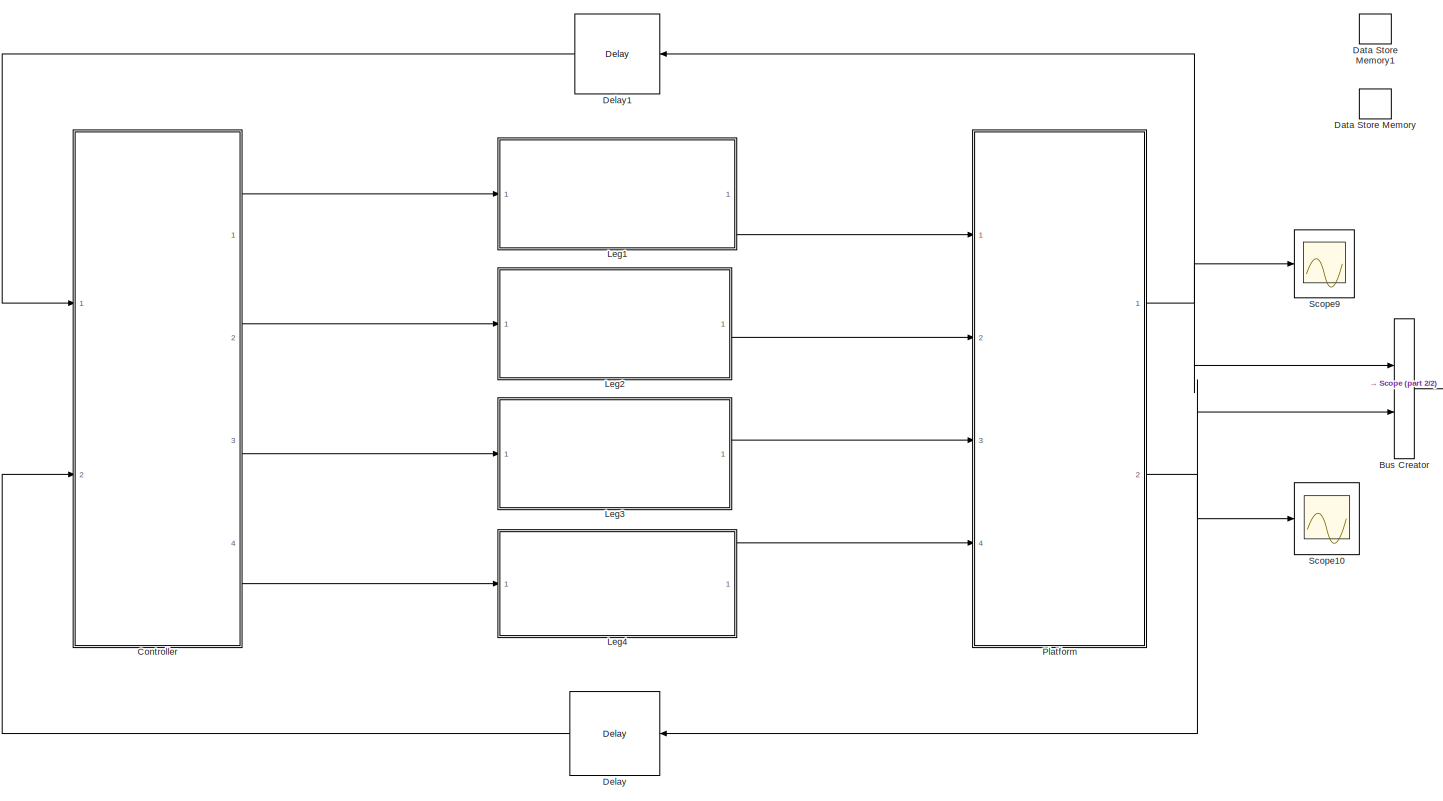
[diagram: root canvas - part 1/2, most of the canvas]
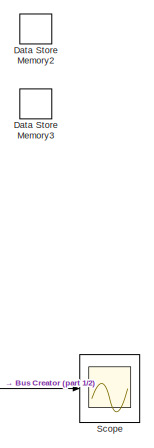
[diagram: root canvas - part 2/2, top right region]
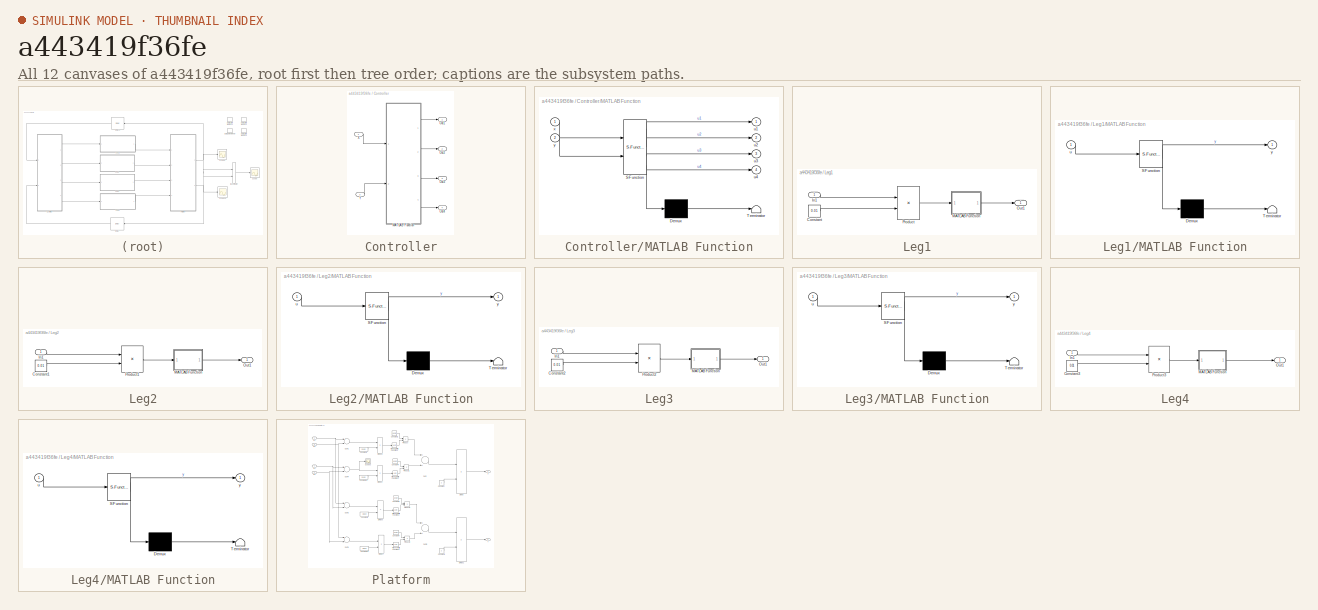
[diagram: thumbnail index - all 12 canvases of the model, root first then tree order]
MODEL slx_a443419f36fe
KIND model
CONFIG AbsTol = auto
CONFIG EnableMultiTasking = off
CONFIG FixedStep = 0.01
CONFIG MaxStep = 1.0
CONFIG MinStep = auto
CONFIG RelTol = 1e-3
CONFIG SampleTimeConstraint = Unconstrained
CONFIG Solver = VariableStepAuto
CONFIG SolverName = VariableStepAuto
CONFIG StartTime = 0.0
CONFIG StopTime = 10
BLOCK [BusCreator] Bus Creator
  DisplayOption = bar
  InheritFromInputs = on
  Inputs = 2
  Ports = [2, 1]
BLOCK [SubSystem] Controller
  Ports = [2, 4]
  RequestExecContextInheritance = off
  TreatAsAtomicUnit = on
  Variant = off
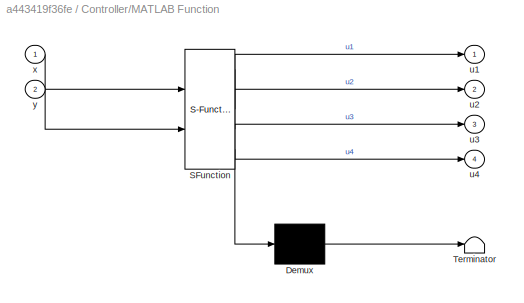
BLOCK [SubSystem] Controller/MATLAB Function
  ErrorFcn = Stateflow.Translate.translate
  PermitHierarchicalResolution = ExplicitOnly
  Ports = [2, 4]
  RequestExecContextInheritance = off
  SFBlockType = MATLAB Function
  TreatAsAtomicUnit = on
  Variant = off
BLOCK [Demux] Controller/MATLAB Function/ Demux 
  Outputs = 1
  Ports = [1, 1]
BLOCK [S-Function] Controller/MATLAB Function/ SFunction 
  EnableBusSupport = on
  FunctionName = sf_sfun
  PortCounts = [2 5]
  Ports = [2, 5]
  SFcnIsStateOwnerBlock = off
  SFunctionDeploymentMode = off
  Tag = Stateflow S-Function draft33 2
BLOCK [Terminator] Controller/MATLAB Function/ Terminator 
BLOCK [Outport] Controller/MATLAB Function/u1
  IconDisplay = Port number
BLOCK [Outport] Controller/MATLAB Function/u2
  IconDisplay = Port number
  Port = 2
BLOCK [Outport] Controller/MATLAB Function/u3
  IconDisplay = Port number
  Port = 3
BLOCK [Outport] Controller/MATLAB Function/u4
  IconDisplay = Port number
  Port = 4
BLOCK [Inport] Controller/MATLAB Function/x
  IconDisplay = Port number
BLOCK [Inport] Controller/MATLAB Function/y
  IconDisplay = Port number
  Port = 2
BLOCK [Outport] Controller/Out1
  IconDisplay = Port number
BLOCK [Outport] Controller/Out2
  IconDisplay = Port number
  Port = 2
BLOCK [Outport] Controller/Out3
  IconDisplay = Port number
  Port = 3
BLOCK [Outport] Controller/Out4
  IconDisplay = Port number
  Port = 4
BLOCK [Inport] Controller/X
  IconDisplay = Port number
BLOCK [Inport] Controller/Y
  IconDisplay = Port number
  Port = 2
BLOCK [DataStoreMemory] Data Store Memory
  DataStoreName = c
  InitialValue = 230
  OutDataTypeStr = double
  ReadBeforeWriteMsg = warning
  ShowAdditionalParam = off
  SignalType = real
  WriteAfterReadMsg = warning
  WriteAfterWriteMsg = warning
BLOCK [DataStoreMemory] Data Store Memory1
  DataStoreName = b
  InitialValue = 245
  OutDataTypeStr = double
  ReadBeforeWriteMsg = warning
  ShowAdditionalParam = off
  SignalType = real
  WriteAfterReadMsg = warning
  WriteAfterWriteMsg = warning
BLOCK [DataStoreMemory] Data Store Memory2
  DataStoreName = a
  InitialValue = 250
  OutDataTypeStr = double
  ReadBeforeWriteMsg = warning
  ShowAdditionalParam = off
  SignalType = real
  WriteAfterReadMsg = warning
  WriteAfterWriteMsg = warning
BLOCK [DataStoreMemory] Data Store Memory3
  DataStoreName = d
  InitialValue = 240
  OutDataTypeStr = double
  ReadBeforeWriteMsg = warning
  ShowAdditionalParam = off
  SignalType = real
  WriteAfterReadMsg = warning
  WriteAfterWriteMsg = warning
BLOCK [Delay] Delay
  DelayLength = 1
  InputPortMap = u0
  Ports = [1, 1]
  SampleTime = 3/700
BLOCK [Delay] Delay1
  DelayLength = 1
  InputPortMap = u0
  Ports = [1, 1]
  SampleTime = 3/700
BLOCK [SubSystem] Leg1
  Ports = [1, 1]
  RequestExecContextInheritance = off
  TreatAsAtomicUnit = on
  Variant = off
BLOCK [Constant] Leg1/Constant
  Value = 0.01
BLOCK [Inport] Leg1/In1
  IconDisplay = Port number
BLOCK [SubSystem] Leg1/MATLAB Function
  ErrorFcn = Stateflow.Translate.translate
  PermitHierarchicalResolution = ExplicitOnly
  Ports = [1, 1]
  RequestExecContextInheritance = off
  SFBlockType = MATLAB Function
  TreatAsAtomicUnit = on
  Variant = off
BLOCK [Demux] Leg1/MATLAB Function/ Demux 
  Outputs = 1
  Ports = [1, 1]
BLOCK [S-Function] Leg1/MATLAB Function/ SFunction 
  EnableBusSupport = on
  FunctionName = sf_sfun
  PortCounts = [1 2]
  Ports = [1, 2]
  SFcnIsStateOwnerBlock = off
  SFunctionDeploymentMode = off
  Tag = Stateflow S-Function draft33 4
BLOCK [Terminator] Leg1/MATLAB Function/ Terminator 
BLOCK [Inport] Leg1/MATLAB Function/u
  IconDisplay = Port number
BLOCK [Outport] Leg1/MATLAB Function/y
  IconDisplay = Port number
BLOCK [Outport] Leg1/Out1
  IconDisplay = Port number
BLOCK [Product] Leg1/Product
  InputSameDT = off
  OutDataTypeStr = Inherit: Inherit via internal rule
  Ports = [2, 1]
  RndMeth = Floor
  SaturateOnIntegerOverflow = off
BLOCK [SubSystem] Leg2
  Ports = [1, 1]
  RequestExecContextInheritance = off
  TreatAsAtomicUnit = on
  Variant = off
BLOCK [Constant] Leg2/Constant1
  Value = 0.01
BLOCK [Inport] Leg2/In1
  IconDisplay = Port number
BLOCK [SubSystem] Leg2/MATLAB Function
  ErrorFcn = Stateflow.Translate.translate
  PermitHierarchicalResolution = ExplicitOnly
  Ports = [1, 1]
  RequestExecContextInheritance = off
  SFBlockType = MATLAB Function
  TreatAsAtomicUnit = on
  Variant = off
BLOCK [Demux] Leg2/MATLAB Function/ Demux 
  Outputs = 1
  Ports = [1, 1]
BLOCK [S-Function] Leg2/MATLAB Function/ SFunction 
  EnableBusSupport = on
  FunctionName = sf_sfun
  PortCounts = [1 2]
  Ports = [1, 2]
  SFcnIsStateOwnerBlock = off
  SFunctionDeploymentMode = off
  Tag = Stateflow S-Function draft33 3
BLOCK [Terminator] Leg2/MATLAB Function/ Terminator 
BLOCK [Inport] Leg2/MATLAB Function/u
  IconDisplay = Port number
BLOCK [Outport] Leg2/MATLAB Function/y
  IconDisplay = Port number
BLOCK [Outport] Leg2/Out1
  IconDisplay = Port number
BLOCK [Product] Leg2/Product1
  InputSameDT = off
  OutDataTypeStr = Inherit: Inherit via internal rule
  Ports = [2, 1]
  RndMeth = Floor
  SaturateOnIntegerOverflow = off
BLOCK [SubSystem] Leg3
  Ports = [1, 1]
  RequestExecContextInheritance = off
  TreatAsAtomicUnit = on
  Variant = off
BLOCK [Constant] Leg3/Constant2
  Value = 0.01
BLOCK [Inport] Leg3/In1
  IconDisplay = Port number
BLOCK [SubSystem] Leg3/MATLAB Function
  ErrorFcn = Stateflow.Translate.translate
  PermitHierarchicalResolution = ExplicitOnly
  Ports = [1, 1]
  RequestExecContextInheritance = off
  SFBlockType = MATLAB Function
  TreatAsAtomicUnit = on
  Variant = off
BLOCK [Demux] Leg3/MATLAB Function/ Demux 
  Outputs = 1
  Ports = [1, 1]
BLOCK [S-Function] Leg3/MATLAB Function/ SFunction 
  EnableBusSupport = on
  FunctionName = sf_sfun
  PortCounts = [1 2]
  Ports = [1, 2]
  SFcnIsStateOwnerBlock = off
  SFunctionDeploymentMode = off
  Tag = Stateflow S-Function draft33 1
BLOCK [Terminator] Leg3/MATLAB Function/ Terminator 
BLOCK [Inport] Leg3/MATLAB Function/u
  IconDisplay = Port number
BLOCK [Outport] Leg3/MATLAB Function/y
  IconDisplay = Port number
BLOCK [Outport] Leg3/Out1
  IconDisplay = Port number
BLOCK [Product] Leg3/Product2
  InputSameDT = off
  OutDataTypeStr = Inherit: Inherit via internal rule
  Ports = [2, 1]
  RndMeth = Floor
  SaturateOnIntegerOverflow = off
BLOCK [SubSystem] Leg4
  Ports = [1, 1]
  RequestExecContextInheritance = off
  TreatAsAtomicUnit = on
  Variant = off
BLOCK [Constant] Leg4/Constant3
  Value = 0.01
BLOCK [Inport] Leg4/In1
  IconDisplay = Port number
BLOCK [SubSystem] Leg4/MATLAB Function
  ErrorFcn = Stateflow.Translate.translate
  PermitHierarchicalResolution = ExplicitOnly
  Ports = [1, 1]
  RequestExecContextInheritance = off
  SFBlockType = MATLAB Function
  TreatAsAtomicUnit = on
  Variant = off
BLOCK [Demux] Leg4/MATLAB Function/ Demux 
  Outputs = 1
  Ports = [1, 1]
BLOCK [S-Function] Leg4/MATLAB Function/ SFunction 
  EnableBusSupport = on
  FunctionName = sf_sfun
  PortCounts = [1 2]
  Ports = [1, 2]
  SFcnIsStateOwnerBlock = off
  SFunctionDeploymentMode = off
  Tag = Stateflow S-Function draft33 5
BLOCK [Terminator] Leg4/MATLAB Function/ Terminator 
BLOCK [Inport] Leg4/MATLAB Function/u
  IconDisplay = Port number
BLOCK [Outport] Leg4/MATLAB Function/y
  IconDisplay = Port number
BLOCK [Outport] Leg4/Out1
  IconDisplay = Port number
BLOCK [Product] Leg4/Product3
  InputSameDT = off
  OutDataTypeStr = Inherit: Inherit via internal rule
  Ports = [2, 1]
  RndMeth = Floor
  SaturateOnIntegerOverflow = off
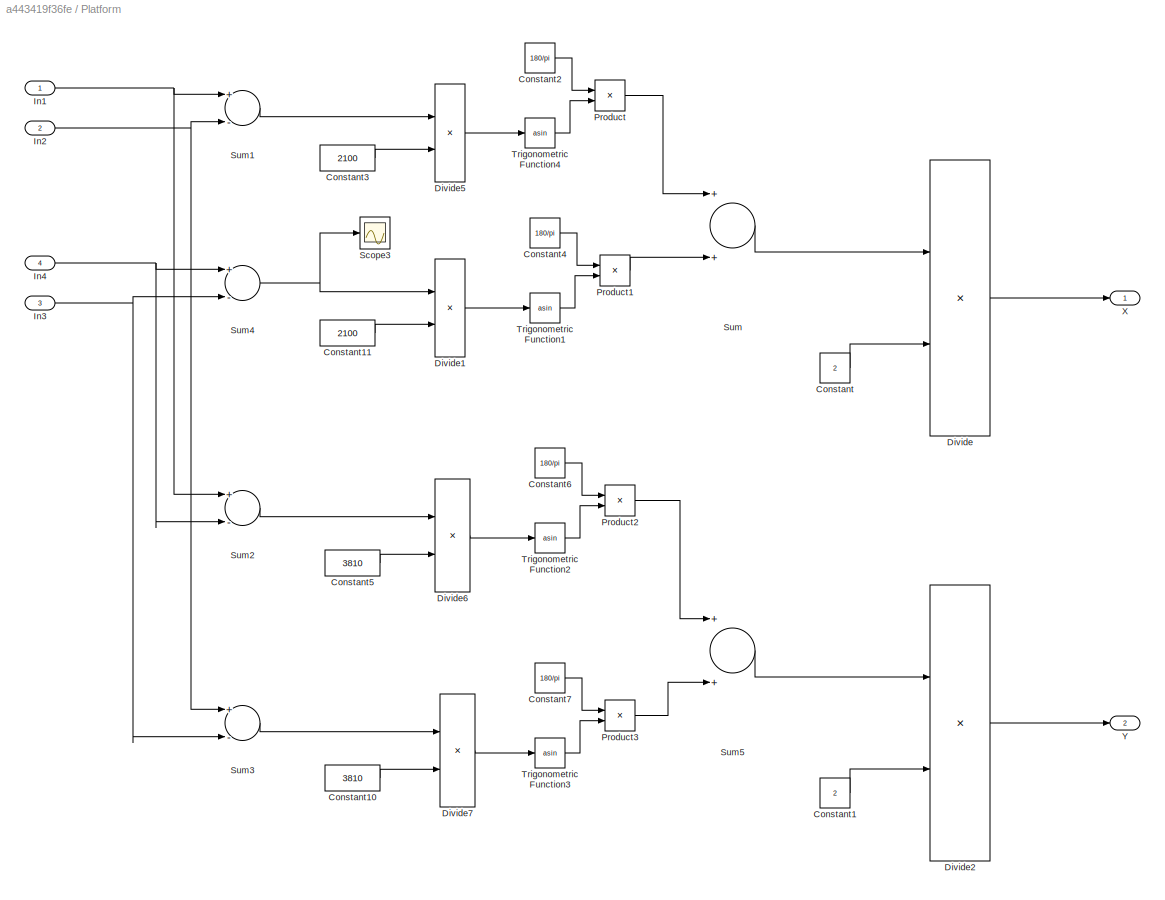
BLOCK [SubSystem] Platform
  Ports = [4, 2]
  RequestExecContextInheritance = off
  TreatAsAtomicUnit = on
  Variant = off
BLOCK [Constant] Platform/Constant
  Value = 2
BLOCK [Constant] Platform/Constant1
  Value = 2
BLOCK [Constant] Platform/Constant10
  Value = 3810
BLOCK [Constant] Platform/Constant11
  Value = 2100
BLOCK [Constant] Platform/Constant2
  Value = 180/pi
BLOCK [Constant] Platform/Constant3
  Value = 2100
BLOCK [Constant] Platform/Constant4
  Value = 180/pi
BLOCK [Constant] Platform/Constant5
  Value = 3810
BLOCK [Constant] Platform/Constant6
  Value = 180/pi
BLOCK [Constant] Platform/Constant7
  Value = 180/pi
BLOCK [Product] Platform/Divide
  InputSameDT = off
  Inputs = */
  OutDataTypeStr = Inherit: Inherit via internal rule
  Ports = [2, 1]
  RndMeth = Floor
  SaturateOnIntegerOverflow = off
BLOCK [Product] Platform/Divide1
  InputSameDT = off
  Inputs = */
  OutDataTypeStr = Inherit: Inherit via internal rule
  Ports = [2, 1]
  RndMeth = Floor
  SaturateOnIntegerOverflow = off
BLOCK [Product] Platform/Divide2
  InputSameDT = off
  Inputs = */
  OutDataTypeStr = Inherit: Inherit via internal rule
  Ports = [2, 1]
  RndMeth = Floor
  SaturateOnIntegerOverflow = off
BLOCK [Product] Platform/Divide5
  InputSameDT = off
  Inputs = */
  OutDataTypeStr = Inherit: Inherit via internal rule
  Ports = [2, 1]
  RndMeth = Floor
  SaturateOnIntegerOverflow = off
BLOCK [Product] Platform/Divide6
  InputSameDT = off
  Inputs = */
  OutDataTypeStr = Inherit: Inherit via internal rule
  Ports = [2, 1]
  RndMeth = Floor
  SaturateOnIntegerOverflow = off
BLOCK [Product] Platform/Divide7
  InputSameDT = off
  Inputs = */
  OutDataTypeStr = Inherit: Inherit via internal rule
  Ports = [2, 1]
  RndMeth = Floor
  SaturateOnIntegerOverflow = off
BLOCK [Inport] Platform/In1
  IconDisplay = Port number
BLOCK [Inport] Platform/In2
  IconDisplay = Port number
  Port = 2
BLOCK [Inport] Platform/In3
  IconDisplay = Port number
  Port = 3
BLOCK [Inport] Platform/In4
  IconDisplay = Port number
  Port = 4
BLOCK [Product] Platform/Product
  InputSameDT = off
  OutDataTypeStr = Inherit: Inherit via internal rule
  Ports = [2, 1]
  RndMeth = Floor
  SaturateOnIntegerOverflow = off
BLOCK [Product] Platform/Product1
  InputSameDT = off
  OutDataTypeStr = Inherit: Inherit via internal rule
  Ports = [2, 1]
  RndMeth = Floor
  SaturateOnIntegerOverflow = off
BLOCK [Product] Platform/Product2
  InputSameDT = off
  OutDataTypeStr = Inherit: Inherit via internal rule
  Ports = [2, 1]
  RndMeth = Floor
  SaturateOnIntegerOverflow = off
BLOCK [Product] Platform/Product3
  InputSameDT = off
  OutDataTypeStr = Inherit: Inherit via internal rule
  Ports = [2, 1]
  RndMeth = Floor
  SaturateOnIntegerOverflow = off
BLOCK [Scope] Platform/Scope3
  NumInputPorts = 1
  Ports = [1]
  ScopeSpecificationString = Simulink.scopes.TimeScopeBlockCfg('CurrentConfiguration', extmgr.ConfigurationSet(extmgr.Configuration('Core','General UI',true),extmgr.Configuration('Core','Source UI',true),extmgr.Configuration('Sources','WiredSimulink',true,'DataLoggingVariableName','ScopeData4'),extmgr.Configuration('Visuals','Time Domain',true,'SerializedDisplays',{struct('MinYLimReal','40.00000','MaxYLimReal','60.00000','YLa...<+1369ch>
BLOCK [Sum] Platform/Sum
  InputSameDT = off
  OutDataTypeStr = Inherit: Inherit via internal rule
  Ports = [2, 1]
  SaturateOnIntegerOverflow = off
BLOCK [Sum] Platform/Sum1
  InputSameDT = off
  Inputs = +-
  OutDataTypeStr = Inherit: Inherit via internal rule
  Ports = [2, 1]
  SaturateOnIntegerOverflow = off
BLOCK [Sum] Platform/Sum2
  InputSameDT = off
  Inputs = +-
  OutDataTypeStr = Inherit: Inherit via internal rule
  Ports = [2, 1]
  SaturateOnIntegerOverflow = off
BLOCK [Sum] Platform/Sum3
  InputSameDT = off
  Inputs = +-
  OutDataTypeStr = Inherit: Inherit via internal rule
  Ports = [2, 1]
  SaturateOnIntegerOverflow = off
BLOCK [Sum] Platform/Sum4
  InputSameDT = off
  Inputs = +-
  OutDataTypeStr = Inherit: Inherit via internal rule
  Ports = [2, 1]
  SaturateOnIntegerOverflow = off
BLOCK [Sum] Platform/Sum5
  InputSameDT = off
  OutDataTypeStr = Inherit: Inherit via internal rule
  Ports = [2, 1]
  SaturateOnIntegerOverflow = off
BLOCK [Trigonometry] Platform/Trigonometric Function1
  Operator = asin
  Ports = [1, 1]
BLOCK [Trigonometry] Platform/Trigonometric Function2
  Operator = asin
  Ports = [1, 1]
BLOCK [Trigonometry] Platform/Trigonometric Function3
  Operator = asin
  Ports = [1, 1]
BLOCK [Trigonometry] Platform/Trigonometric Function4
  Operator = asin
  Ports = [1, 1]
BLOCK [Outport] Platform/X
  IconDisplay = Port number
BLOCK [Outport] Platform/Y
  IconDisplay = Port number
  Port = 2
BLOCK [Scope] Scope
  NumInputPorts = 1
  Ports = [1]
  ScopeSpecificationString = Simulink.scopes.TimeScopeBlockCfg('CurrentConfiguration', extmgr.ConfigurationSet(extmgr.Configuration('Core','General UI',true,'FigureColor',[1 1 1]),extmgr.Configuration('Core','Source UI',true),extmgr.Configuration('Sources','WiredSimulink',true,'DataLoggingVariableName','ScopeData1'),extmgr.Configuration('Visuals','Time Domain',true,'SerializedDisplays',{struct('MinYLimReal','-0.00333','MaxYLi...<+1752ch>
BLOCK [Scope] Scope10
  NumInputPorts = 1
  Ports = [1]
  ScopeSpecificationString = Simulink.scopes.TimeScopeBlockCfg('CurrentConfiguration', extmgr.ConfigurationSet(extmgr.Configuration('Core','General UI',true),extmgr.Configuration('Core','Source UI',true),extmgr.Configuration('Sources','WiredSimulink',true,'DataLoggingVariableName','ScopeData11'),extmgr.Configuration('Visuals','Time Domain',true,'SerializedDisplays',{struct('MinYLimReal','0.00832','MaxYLimReal','0.12439','YLab...<+1433ch>
BLOCK [Scope] Scope9
  NumInputPorts = 1
  Ports = [1]
  ScopeSpecificationString = Simulink.scopes.TimeScopeBlockCfg('CurrentConfiguration', extmgr.ConfigurationSet(extmgr.Configuration('Core','General UI',true),extmgr.Configuration('Core','Source UI',true),extmgr.Configuration('Sources','WiredSimulink',true,'DataLoggingVariableName','ScopeData10'),extmgr.Configuration('Visuals','Time Domain',true,'SerializedDisplays',{struct('MinYLimReal','-0.02038','MaxYLimReal','0.38121','YLa...<+1502ch>
LINE Bus Creator:1 -> Scope:1
LINE Controller/MATLAB Function:1 -> Controller/Out1:1
LINE Controller/MATLAB Function:2 -> Controller/Out2:1
LINE Controller/MATLAB Function:3 -> Controller/Out3:1
LINE Controller/MATLAB Function:4 -> Controller/Out4:1
LINE Controller/X:1 -> Controller/MATLAB Function:1
LINE Controller/Y:1 -> Controller/MATLAB Function:2
LINE Controller:1 -> Leg1:1
LINE Controller:2 -> Leg2:1
LINE Controller:3 -> Leg3:1
LINE Controller:4 -> Leg4:1
LINE Delay1:1 -> Controller:1
LINE Delay:1 -> Controller:2
LINE Leg1/Constant:1 -> Leg1/Product:2
LINE Leg1/In1:1 -> Leg1/Product:1
LINE Leg1/MATLAB Function:1 -> Leg1/Out1:1
LINE Leg1/Product:1 -> Leg1/MATLAB Function:1
LINE Leg1:1 -> Platform:1
LINE Leg2/Constant1:1 -> Leg2/Product1:2
LINE Leg2/In1:1 -> Leg2/Product1:1
LINE Leg2/MATLAB Function:1 -> Leg2/Out1:1
LINE Leg2/Product1:1 -> Leg2/MATLAB Function:1
LINE Leg2:1 -> Platform:2
LINE Leg3/Constant2:1 -> Leg3/Product2:2
LINE Leg3/In1:1 -> Leg3/Product2:1
LINE Leg3/MATLAB Function:1 -> Leg3/Out1:1
LINE Leg3/Product2:1 -> Leg3/MATLAB Function:1
LINE Leg3:1 -> Platform:3
LINE Leg4/Constant3:1 -> Leg4/Product3:2
LINE Leg4/In1:1 -> Leg4/Product3:1
LINE Leg4/MATLAB Function:1 -> Leg4/Out1:1
LINE Leg4/Product3:1 -> Leg4/MATLAB Function:1
LINE Leg4:1 -> Platform:4
LINE Platform/Constant10:1 -> Platform/Divide7:2
LINE Platform/Constant11:1 -> Platform/Divide1:2
LINE Platform/Constant1:1 -> Platform/Divide2:2
LINE Platform/Constant2:1 -> Platform/Product:1
LINE Platform/Constant3:1 -> Platform/Divide5:2
LINE Platform/Constant4:1 -> Platform/Product1:1
LINE Platform/Constant5:1 -> Platform/Divide6:2
LINE Platform/Constant6:1 -> Platform/Product2:1
LINE Platform/Constant7:1 -> Platform/Product3:1
LINE Platform/Constant:1 -> Platform/Divide:2
LINE Platform/Divide1:1 -> Platform/Trigonometric Function1:1
LINE Platform/Divide2:1 -> Platform/Y:1
LINE Platform/Divide5:1 -> Platform/Trigonometric Function4:1
LINE Platform/Divide6:1 -> Platform/Trigonometric Function2:1
LINE Platform/Divide7:1 -> Platform/Trigonometric Function3:1
LINE Platform/Divide:1 -> Platform/X:1
NET Platform/In1:1 -> Platform/Sum1:1, Platform/Sum2:1
NET Platform/In2:1 -> Platform/Sum1:2, Platform/Sum3:1
NET Platform/In3:1 -> Platform/Sum3:2, Platform/Sum4:2
NET Platform/In4:1 -> Platform/Sum2:2, Platform/Sum4:1
LINE Platform/Product1:1 -> Platform/Sum:2
LINE Platform/Product2:1 -> Platform/Sum5:1
LINE Platform/Product3:1 -> Platform/Sum5:2
LINE Platform/Product:1 -> Platform/Sum:1
LINE Platform/Sum1:1 -> Platform/Divide5:1
LINE Platform/Sum2:1 -> Platform/Divide6:1
LINE Platform/Sum3:1 -> Platform/Divide7:1
NET Platform/Sum4:1 -> Platform/Divide1:1, Platform/Scope3:1
LINE Platform/Sum5:1 -> Platform/Divide2:1
LINE Platform/Sum:1 -> Platform/Divide:1
LINE Platform/Trigonometric Function1:1 -> Platform/Product1:2
LINE Platform/Trigonometric Function2:1 -> Platform/Product2:2
LINE Platform/Trigonometric Function3:1 -> Platform/Product3:2
LINE Platform/Trigonometric Function4:1 -> Platform/Product:2
NET Platform:1 -> Bus Creator:1, Delay1:1, Scope9:1
NET Platform:2 -> Bus Creator:2, Delay:1, Scope10:1
note: NET lines group one-source signal fan-out (src -> all destinations, sorted); 1:1 wires keep LINE
CHART Leg3/MATLAB Function states=1 transitions=1
  STATE_LABEL 'eML_blk_kernel()'
  STATE_LABEL 'SCRIPT:\nfunction y = fcn(u)\nglobal c;\nc= u+c;\ny=c;\n'
CHART Controller/MATLAB Function states=1 transitions=1
  STATE_LABEL 'eML_blk_kernel()'
  STATE_LABEL 'SCRIPT:\nfunction [u1,u2,u3,u4]= fcn(x,y)\nif x>0.02&&y>0.02\n    u3=1;u1=-1;u2=0;u4=1;\nelse\n    if x<-0.02&&y>0.02\n        u4=1;u3=1;u1=0;u2=-1;\n    else\n        if x<-0.02&&y<-0.02\n            u1=1;u3=-1;u2=1;u4=0;\n        else\n            if x>0.02&&y<-0.02\n                u2=1;u3=0;u1=1;u4=-1;\n            else\n                u1=0;u2=0;u3=0;u4=0;\n            end\n        end\n    end\nend\nif (x>-0.0...<+322ch>'
CHART Leg2/MATLAB Function states=1 transitions=1
  STATE_LABEL 'eML_blk_kernel()'
  STATE_LABEL 'SCRIPT:\nfunction y = fcn(u)\nglobal b;\nb= u+b;\ny=b;\n'
CHART Leg1/MATLAB Function states=1 transitions=1
  STATE_LABEL 'eML_blk_kernel()'
  STATE_LABEL 'SCRIPT:\nfunction y = fcn(u)\nglobal a;\na= u+a;\ny=a;\n'
CHART Leg4/MATLAB Function states=1 transitions=1
  STATE_LABEL 'eML_blk_kernel()'
  STATE_LABEL 'SCRIPT:\nfunction y = fcn(u)\nglobal d;\nd= u+d;\ny=d;\n'
